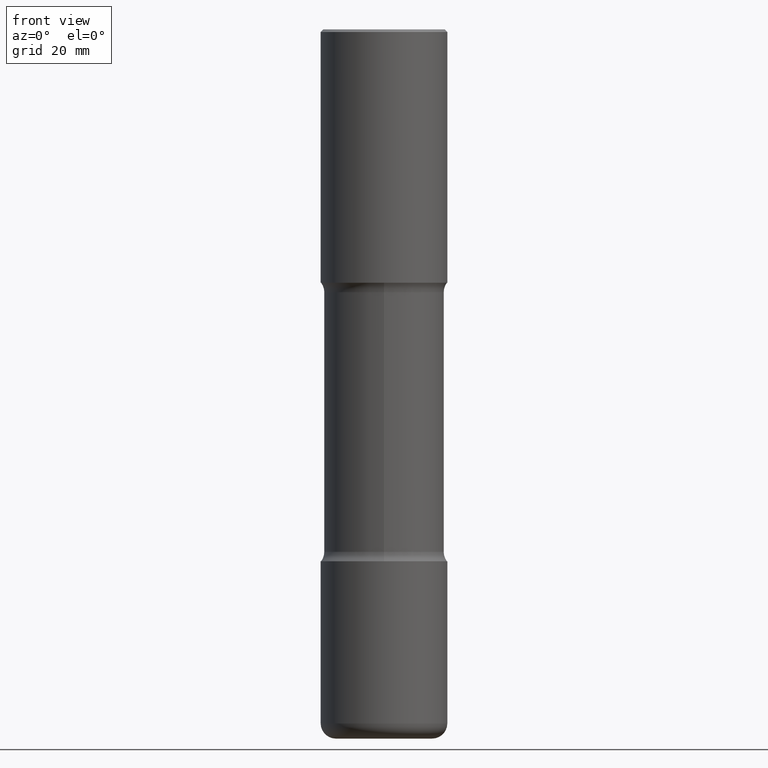
[diagram: clean part render]
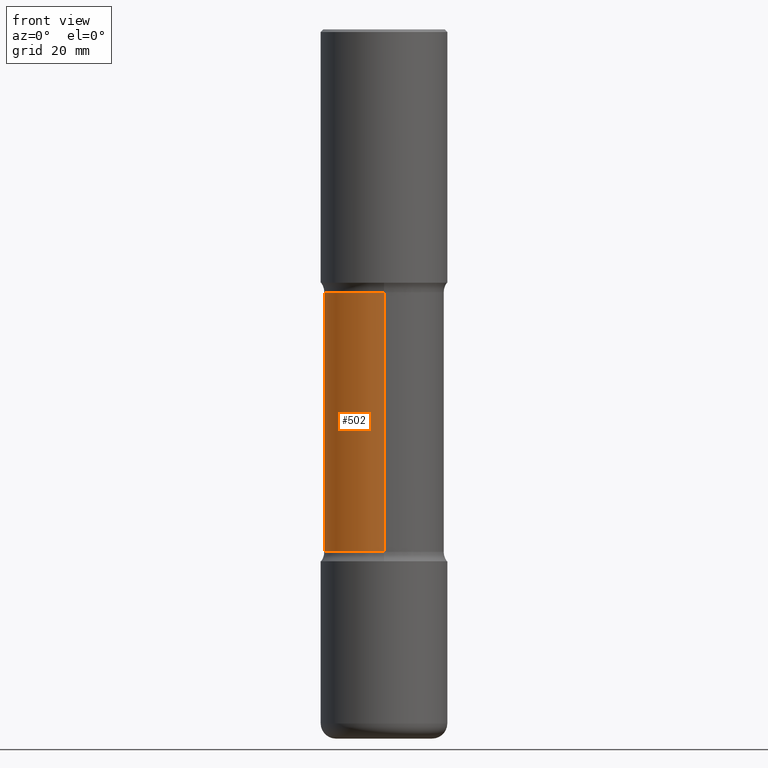
[diagram: same view with one face highlighted and labeled with its STEP entity id]
A machine part, front view. The second image highlights one B-rep face of the part: STEP entity #502.
In plain terms, the highlighted cylindrical surface (partial cylindrical patch) has radius 11.8745 mm, axis along (0, -0, -1).
Its self-contained STEP definition (entity closure, byte-faithful):
#33 = FACE_OUTER_BOUND ( 'NONE', #399, .T. ) ;
#76 = DIRECTION ( 'NONE',  ( 2.514686486086695474E-29, -3.392357681598433540E-15, -1.000000000000000000 ) ) ;
#85 = VERTEX_POINT ( 'NONE', #206 ) ;
#89 = ORIENTED_EDGE ( 'NONE', *, *, #400, .T. ) ;
#116 = EDGE_CURVE ( 'NONE', #345, #344, #418, .T. ) ;
#120 = DIRECTION ( 'NONE',  ( 2.514686486086695194E-29, -3.392357681598433935E-15, -1.000000000000000000 ) ) ;
#159 = LINE ( 'NONE', #324, #419 ) ;
#173 = DIRECTION ( 'NONE',  ( 6.982962677686265922E-15, 1.000000000000000000, -2.337410048054984397E-15 ) ) ;
#190 = CARTESIAN_POINT ( 'NONE',  ( -3.291838451780624866E-15, -0.4675000000000141265, -4.059268949423745276 ) ) ;
#206 = CARTESIAN_POINT ( 'NONE',  ( 3.264535051818428216E-15, 0.4674999999999857048, -4.059268949423747941 ) ) ;
#212 = VECTOR ( 'NONE', #287, 39.37007874015748143 ) ;
#243 = ORIENTED_EDGE ( 'NONE', *, *, #116, .T. ) ;
#244 = CARTESIAN_POINT ( 'NONE',  ( 1.357431692883558381E-28, -1.910775444375243513E-14, -5.511800000000000033 ) ) ;
#249 = DIRECTION ( 'NONE',  ( 6.982962677686266711E-15, 1.000000000000000000, -3.506115072082477581E-15 ) ) ;
#268 = CARTESIAN_POINT ( 'NONE',  ( -3.291838451780680876E-15, -0.4675000000000075207, -2.043031050576251229 ) ) ;
#283 = DIRECTION ( 'NONE',  ( 6.982962677686265922E-15, 1.000000000000000000, -3.506115072082476004E-15 ) ) ;
#287 = DIRECTION ( 'NONE',  ( 2.514686486086695194E-29, -3.392357681598433935E-15, -1.000000000000000000 ) ) ;
#312 = VERTEX_POINT ( 'NONE', #190 ) ;
#317 = ORIENTED_EDGE ( 'NONE', *, *, #507, .F. ) ;
#324 = CARTESIAN_POINT ( 'NONE',  ( -3.207282813958054974E-15, -0.4675000000000191225, -5.511799999999999145 ) ) ;
#331 = AXIS2_PLACEMENT_3D ( 'NONE', #244, #508, #173 ) ;
#344 = VERTEX_POINT ( 'NONE', #450 ) ;
#345 = VERTEX_POINT ( 'NONE', #268 ) ;
#348 = ORIENTED_EDGE ( 'NONE', *, *, #537, .F. ) ;
#367 = CYLINDRICAL_SURFACE ( 'NONE', #331, 0.4675000000000000266 ) ;
#399 = EDGE_LOOP ( 'NONE', ( #317, #243, #89, #348 ) ) ;
#400 = EDGE_CURVE ( 'NONE', #344, #85, #423, .T. ) ;
#418 = CIRCLE ( 'NONE', #499, 0.4675000000000001377 ) ;
#419 = VECTOR ( 'NONE', #120, 39.37007874015748143 ) ;
#420 = CARTESIAN_POINT ( 'NONE',  ( 4.851450528362542528E-29, -7.340449452484660690E-15, -2.043031050576253005 ) ) ;
#423 = LINE ( 'NONE', #464, #212 ) ;
#450 = CARTESIAN_POINT ( 'NONE',  ( 3.264535051818378912E-15, 0.4674999999999928102, -2.043031050576254337 ) ) ;
#462 = CARTESIAN_POINT ( 'NONE',  ( 9.921656725330168688E-29, -1.418024957656984198E-14, -4.059268949423747053 ) ) ;
#464 = CARTESIAN_POINT ( 'NONE',  ( 3.264535051818465292E-15, 0.4674999999999808753, -5.511800000000000921 ) ) ;
#470 = AXIS2_PLACEMENT_3D ( 'NONE', #462, #76, #249 ) ;
#499 = AXIS2_PLACEMENT_3D ( 'NONE', #420, #550, #283 ) ;
#502 = ADVANCED_FACE ( 'NONE', ( #33 ), #367, .T. ) ;
#507 = EDGE_CURVE ( 'NONE', #345, #312, #159, .T. ) ;
#508 = DIRECTION ( 'NONE',  ( 2.514686486086695474E-29, -3.392357681598433540E-15, -1.000000000000000000 ) ) ;
#528 = CIRCLE ( 'NONE', #470, 0.4674999999999999156 ) ;
#537 = EDGE_CURVE ( 'NONE', #312, #85, #528, .T. ) ;
#550 = DIRECTION ( 'NONE',  ( 2.514686486086695474E-29, -3.392357681598433540E-15, -1.000000000000000000 ) ) ;